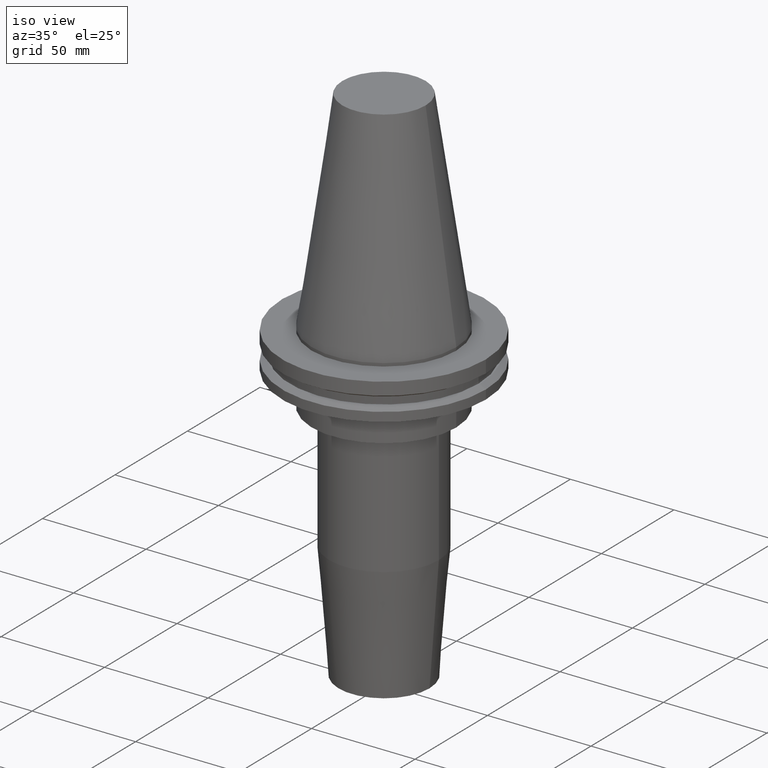
[diagram: clean part render]
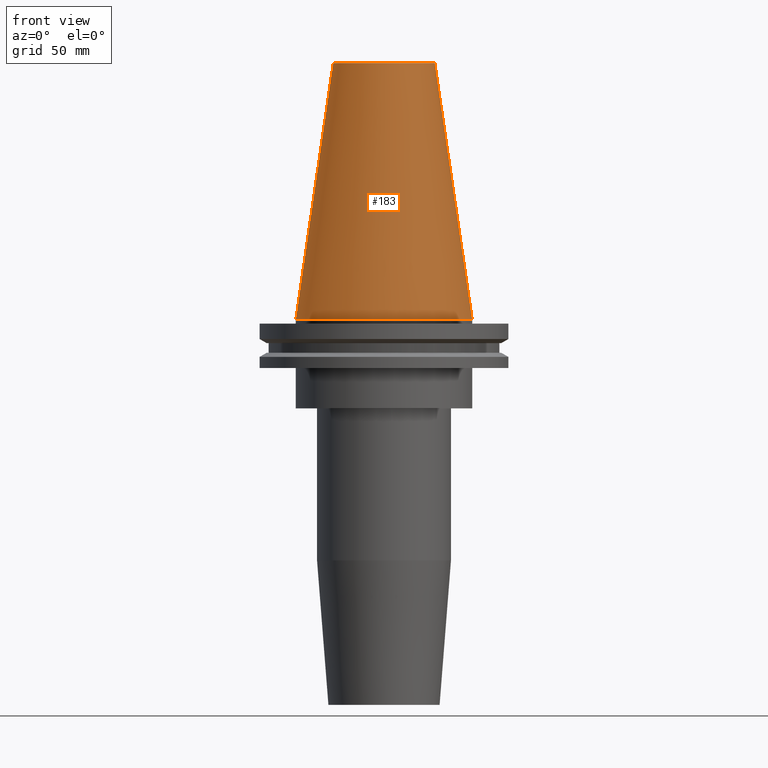
[diagram: tour spotlight — one face highlighted and labeled with its STEP entity id]
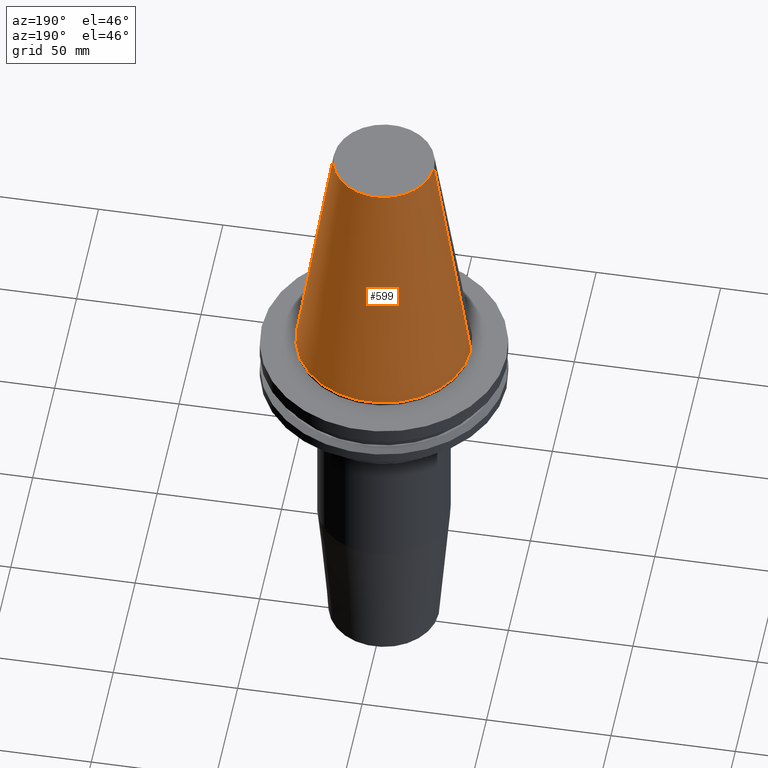
[diagram: tour spotlight — one face highlighted and labeled with its STEP entity id]
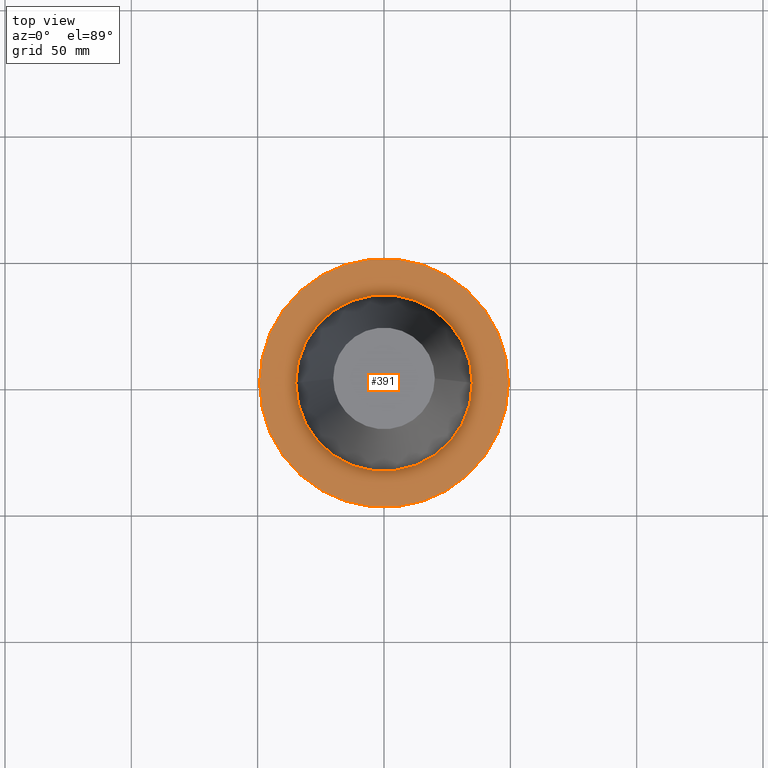
[diagram: tour spotlight — one face highlighted and labeled with its STEP entity id]
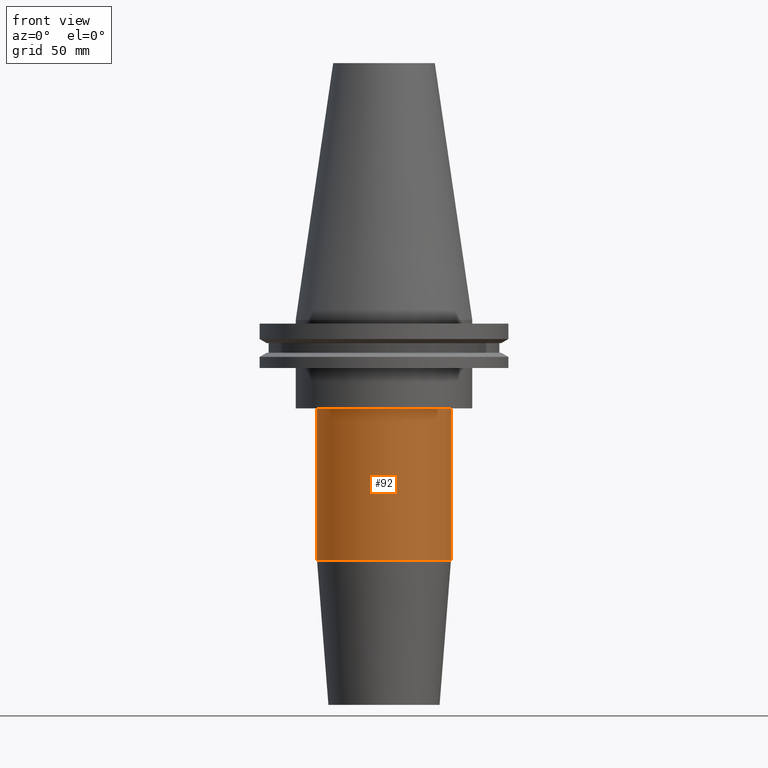
[diagram: tour spotlight — one face highlighted and labeled with its STEP entity id]
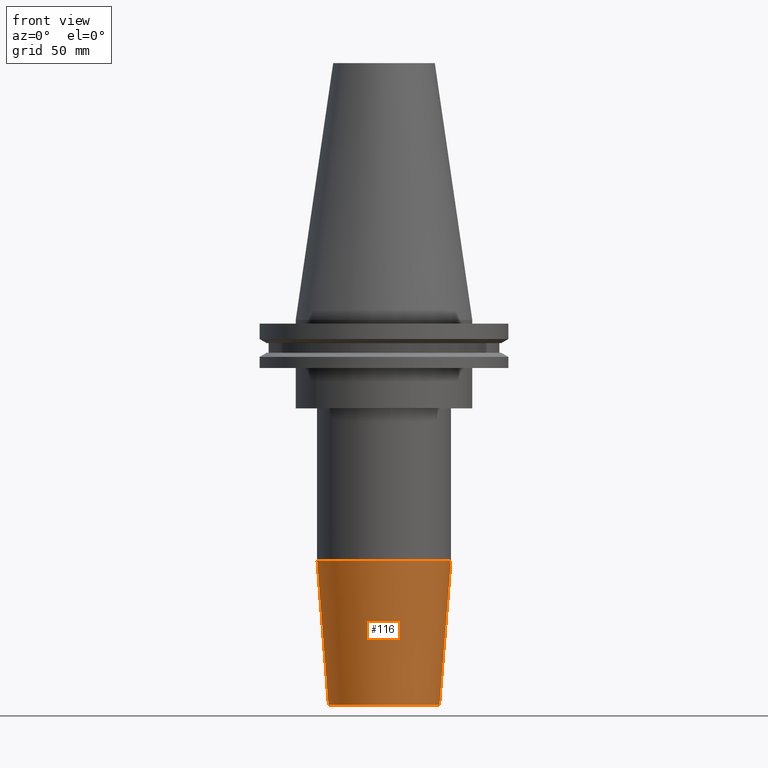
[diagram: tour spotlight — one face highlighted and labeled with its STEP entity id]
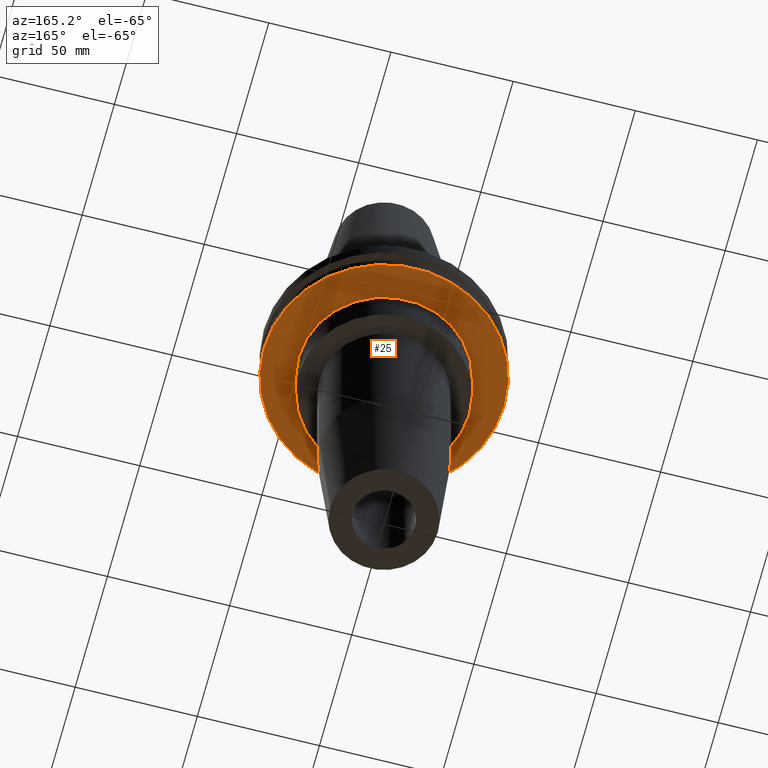
[diagram: tour spotlight — one face highlighted and labeled with its STEP entity id]
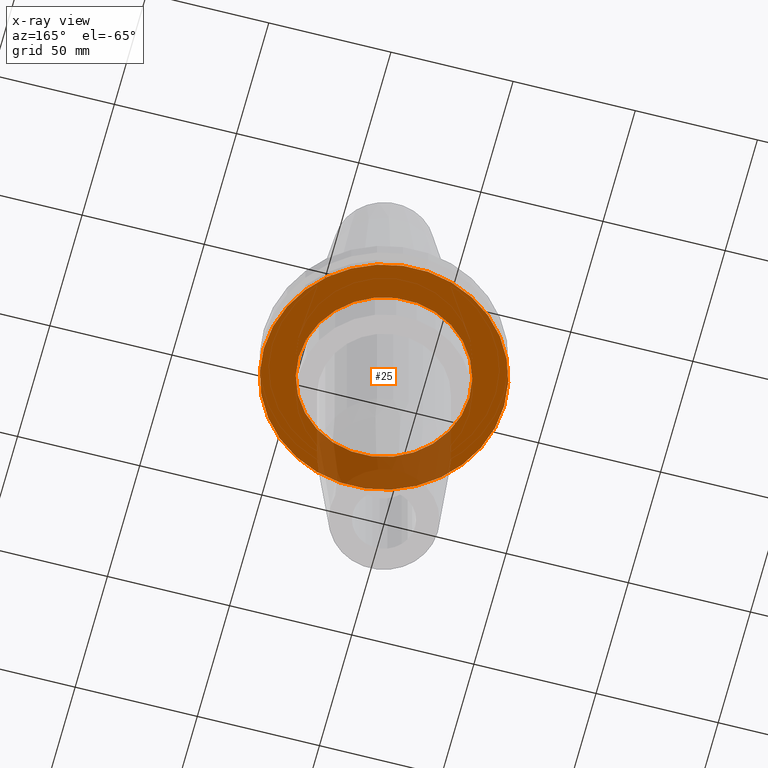
[diagram: x-ray of the same camera — body ghosted, this tour face saturated]
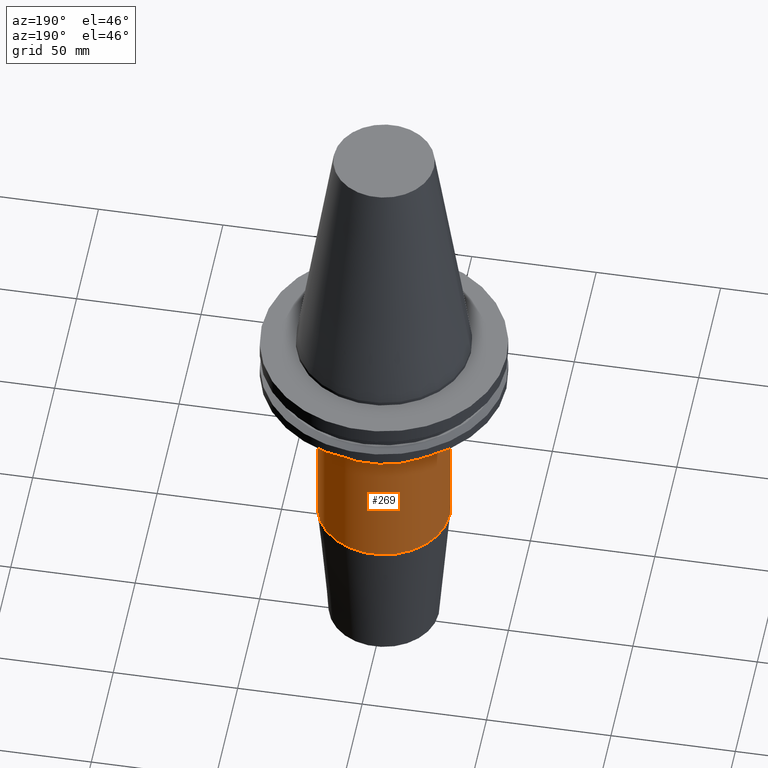
[diagram: tour spotlight — one face highlighted and labeled with its STEP entity id]
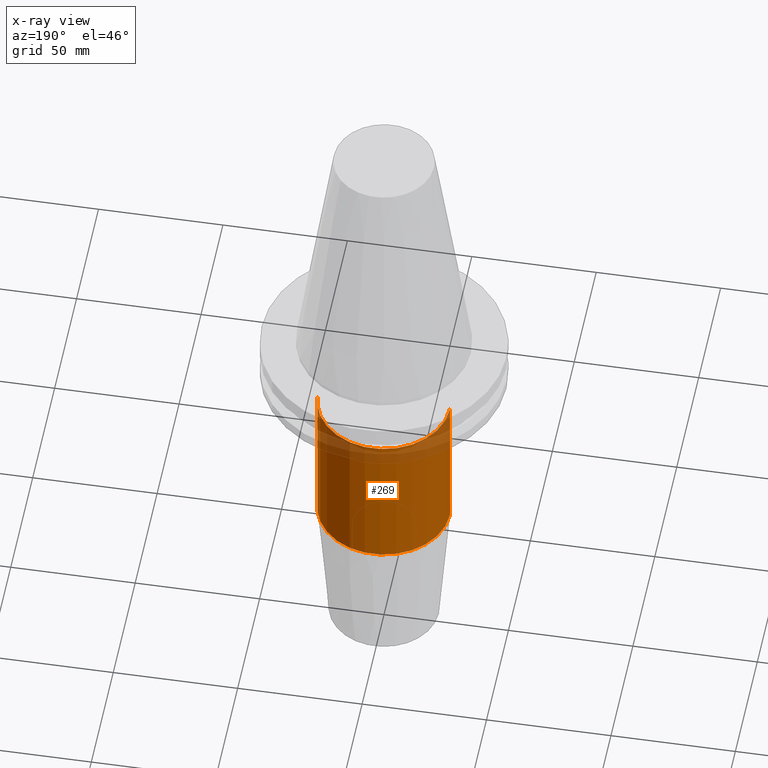
[diagram: x-ray of the same camera — body ghosted, this tour face saturated]
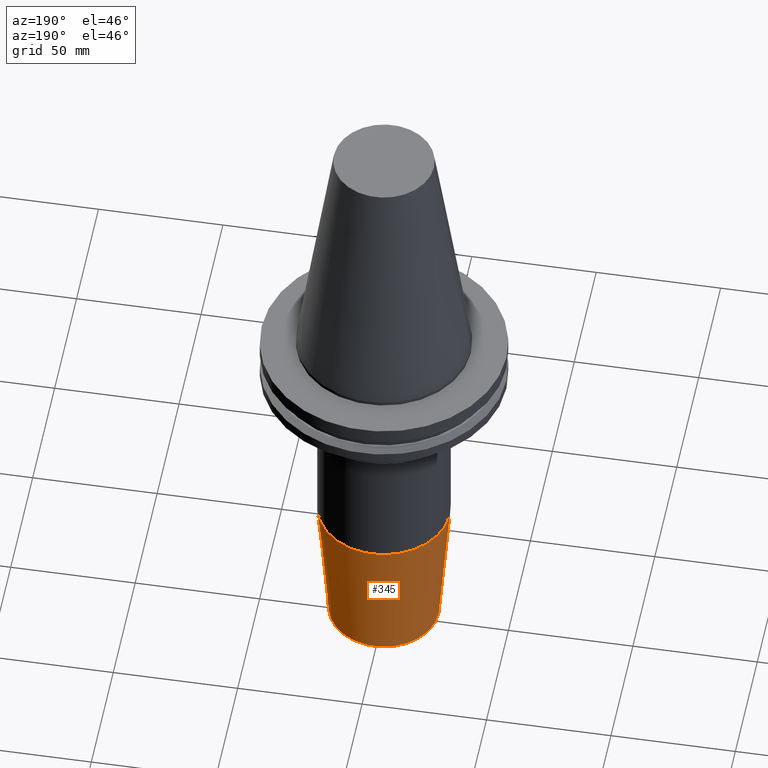
[diagram: tour spotlight — one face highlighted and labeled with its STEP entity id]
A machine part: a face-by-face anatomy tour. The part has 30 B-rep faces; the first image is the clean iso view, then the 8 largest visible faces are spotlighted one at a time (largest first), each with its STEP entity span.

Face 1 — front view, entity #183. In plain terms, the highlighted conical surface has half-angle 8.297 deg.
Definition (entity closure, byte-faithful):
#24 = CARTESIAN_POINT ( 'NONE',  ( 34.92499999999999005, 4.277078946022130098E-15, 0.000000000000000000 ) ) ;
#35 = AXIS2_PLACEMENT_3D ( 'NONE', #708, #329, #700 ) ;
#36 = CARTESIAN_POINT ( 'NONE',  ( 0.000000000000000000, 0.000000000000000000, 0.000000000000000000 ) ) ;
#50 = EDGE_CURVE ( 'NONE', #371, #171, #468, .T. ) ;
#100 = DIRECTION ( 'NONE',  ( 1.000000000000000000, 0.000000000000000000, 0.000000000000000000 ) ) ;
#104 = EDGE_CURVE ( 'NONE', #632, #470, #621, .T. ) ;
#158 = DIRECTION ( 'NONE',  ( 0.1443082272672999988, 1.767266086135277066E-17, -0.9895327864921755756 ) ) ;
#171 = VERTEX_POINT ( 'NONE', #421 ) ;
#183 = ADVANCED_FACE ( 'NONE', ( #613 ), #259, .T. ) ;
#205 = EDGE_CURVE ( 'NONE', #171, #470, #849, .T. ) ;
#246 = DIRECTION ( 'NONE',  ( -0.000000000000000000, -0.000000000000000000, 1.000000000000000000 ) ) ;
#259 = CONICAL_SURFACE ( 'NONE', #746, 34.92499999999999005, 0.1448138465474119452 ) ;
#276 = AXIS2_PLACEMENT_3D ( 'NONE', #36, #246, #100 ) ;
#293 = DIRECTION ( 'NONE',  ( -1.000000000000000000, 0.000000000000000000, 0.000000000000000000 ) ) ;
#329 = DIRECTION ( 'NONE',  ( -0.000000000000000000, -0.000000000000000000, 1.000000000000000000 ) ) ;
#336 = EDGE_CURVE ( 'NONE', #371, #632, #761, .T. ) ;
#371 = VERTEX_POINT ( 'NONE', #505 ) ;
#421 = CARTESIAN_POINT ( 'NONE',  ( -34.92499999999999005, 0.000000000000000000, 0.000000000000000000 ) ) ;
#468 = LINE ( 'NONE', #596, #822 ) ;
#470 = VERTEX_POINT ( 'NONE', #799 ) ;
#505 = CARTESIAN_POINT ( 'NONE',  ( -20.10819343178871321, 0.000000000000000000, 101.5999999999999801 ) ) ;
#507 = ORIENTED_EDGE ( 'NONE', *, *, #50, .T. ) ;
#515 = EDGE_LOOP ( 'NONE', ( #779, #814, #507, #718 ) ) ;
#516 = VECTOR ( 'NONE', #158, 999.9999999999998863 ) ;
#564 = CARTESIAN_POINT ( 'NONE',  ( 0.000000000000000000, 0.000000000000000000, 0.000000000000000000 ) ) ;
#596 = CARTESIAN_POINT ( 'NONE',  ( -34.92499999999999005, 0.000000000000000000, 0.000000000000000000 ) ) ;
#613 = FACE_OUTER_BOUND ( 'NONE', #515, .T. ) ;
#619 = CARTESIAN_POINT ( 'NONE',  ( 20.10819343178871321, 3.369811209154858606E-15, 101.5999999999999801 ) ) ;
#621 = LINE ( 'NONE', #24, #516 ) ;
#632 = VERTEX_POINT ( 'NONE', #619 ) ;
#700 = DIRECTION ( 'NONE',  ( 1.000000000000000000, 0.000000000000000000, 0.000000000000000000 ) ) ;
#708 = CARTESIAN_POINT ( 'NONE',  ( 0.000000000000000000, 0.000000000000000000, 101.5999999999999801 ) ) ;
#718 = ORIENTED_EDGE ( 'NONE', *, *, #205, .T. ) ;
#746 = AXIS2_PLACEMENT_3D ( 'NONE', #564, #751, #293 ) ;
#751 = DIRECTION ( 'NONE',  ( 0.000000000000000000, 0.000000000000000000, -1.000000000000000000 ) ) ;
#761 = CIRCLE ( 'NONE', #35, 20.10819343178871321 ) ;
#779 = ORIENTED_EDGE ( 'NONE', *, *, #104, .F. ) ;
#795 = DIRECTION ( 'NONE',  ( -0.1443082272672999988, 0.000000000000000000, -0.9895327864921755756 ) ) ;
#799 = CARTESIAN_POINT ( 'NONE',  ( 34.92499999999999005, 4.277078946022130098E-15, 0.000000000000000000 ) ) ;
#814 = ORIENTED_EDGE ( 'NONE', *, *, #336, .F. ) ;
#822 = VECTOR ( 'NONE', #795, 999.9999999999998863 ) ;
#849 = CIRCLE ( 'NONE', #276, 34.92499999999999005 ) ;

Face 2 — auxiliary view, entity #599. In plain terms, the highlighted conical surface has half-angle 8.297 deg.
Definition (entity closure, byte-faithful):
#8 = AXIS2_PLACEMENT_3D ( 'NONE', #44, #56, #716 ) ;
#24 = CARTESIAN_POINT ( 'NONE',  ( 34.92499999999999005, 4.277078946022130098E-15, 0.000000000000000000 ) ) ;
#32 = DIRECTION ( 'NONE',  ( -0.000000000000000000, -0.000000000000000000, 1.000000000000000000 ) ) ;
#44 = CARTESIAN_POINT ( 'NONE',  ( 0.000000000000000000, 0.000000000000000000, 0.000000000000000000 ) ) ;
#50 = EDGE_CURVE ( 'NONE', #371, #171, #468, .T. ) ;
#56 = DIRECTION ( 'NONE',  ( -0.000000000000000000, -0.000000000000000000, 1.000000000000000000 ) ) ;
#85 = CARTESIAN_POINT ( 'NONE',  ( 0.000000000000000000, 0.000000000000000000, 101.5999999999999801 ) ) ;
#104 = EDGE_CURVE ( 'NONE', #632, #470, #621, .T. ) ;
#120 = EDGE_CURVE ( 'NONE', #632, #371, #187, .T. ) ;
#158 = DIRECTION ( 'NONE',  ( 0.1443082272672999988, 1.767266086135277066E-17, -0.9895327864921755756 ) ) ;
#166 = FACE_OUTER_BOUND ( 'NONE', #455, .T. ) ;
#171 = VERTEX_POINT ( 'NONE', #421 ) ;
#187 = CIRCLE ( 'NONE', #453, 20.10819343178871321 ) ;
#297 = DIRECTION ( 'NONE',  ( 1.000000000000000000, 0.000000000000000000, 0.000000000000000000 ) ) ;
#323 = ORIENTED_EDGE ( 'NONE', *, *, #120, .F. ) ;
#330 = EDGE_CURVE ( 'NONE', #470, #171, #437, .T. ) ;
#335 = CONICAL_SURFACE ( 'NONE', #337, 34.92499999999999005, 0.1448138465474119452 ) ;
#337 = AXIS2_PLACEMENT_3D ( 'NONE', #547, #622, #813 ) ;
#371 = VERTEX_POINT ( 'NONE', #505 ) ;
#421 = CARTESIAN_POINT ( 'NONE',  ( -34.92499999999999005, 0.000000000000000000, 0.000000000000000000 ) ) ;
#437 = CIRCLE ( 'NONE', #8, 34.92499999999999005 ) ;
#453 = AXIS2_PLACEMENT_3D ( 'NONE', #85, #32, #297 ) ;
#455 = EDGE_LOOP ( 'NONE', ( #323, #843, #530, #521 ) ) ;
#468 = LINE ( 'NONE', #596, #822 ) ;
#470 = VERTEX_POINT ( 'NONE', #799 ) ;
#505 = CARTESIAN_POINT ( 'NONE',  ( -20.10819343178871321, 0.000000000000000000, 101.5999999999999801 ) ) ;
#516 = VECTOR ( 'NONE', #158, 999.9999999999998863 ) ;
#521 = ORIENTED_EDGE ( 'NONE', *, *, #50, .F. ) ;
#530 = ORIENTED_EDGE ( 'NONE', *, *, #330, .T. ) ;
#547 = CARTESIAN_POINT ( 'NONE',  ( 0.000000000000000000, 0.000000000000000000, 0.000000000000000000 ) ) ;
#596 = CARTESIAN_POINT ( 'NONE',  ( -34.92499999999999005, 0.000000000000000000, 0.000000000000000000 ) ) ;
#599 = ADVANCED_FACE ( 'NONE', ( #166 ), #335, .T. ) ;
#619 = CARTESIAN_POINT ( 'NONE',  ( 20.10819343178871321, 3.369811209154858606E-15, 101.5999999999999801 ) ) ;
#621 = LINE ( 'NONE', #24, #516 ) ;
#622 = DIRECTION ( 'NONE',  ( 0.000000000000000000, 0.000000000000000000, -1.000000000000000000 ) ) ;
#632 = VERTEX_POINT ( 'NONE', #619 ) ;
#716 = DIRECTION ( 'NONE',  ( 1.000000000000000000, 0.000000000000000000, 0.000000000000000000 ) ) ;
#795 = DIRECTION ( 'NONE',  ( -0.1443082272672999988, 0.000000000000000000, -0.9895327864921755756 ) ) ;
#799 = CARTESIAN_POINT ( 'NONE',  ( 34.92499999999999005, 4.277078946022130098E-15, 0.000000000000000000 ) ) ;
#813 = DIRECTION ( 'NONE',  ( -1.000000000000000000, 0.000000000000000000, 0.000000000000000000 ) ) ;
#822 = VECTOR ( 'NONE', #795, 999.9999999999998863 ) ;
#843 = ORIENTED_EDGE ( 'NONE', *, *, #104, .T. ) ;

Face 3 — top view, entity #391. In plain terms, the highlighted planar face has unit normal (0, 0, -1).
Definition (entity closure, byte-faithful):
#4 = ORIENTED_EDGE ( 'NONE', *, *, #688, .F. ) ;
#9 = CIRCLE ( 'NONE', #306, 49.21499999999999631 ) ;
#15 = AXIS2_PLACEMENT_3D ( 'NONE', #219, #735, #89 ) ;
#89 = DIRECTION ( 'NONE',  ( 1.000000000000000000, 0.000000000000000000, 0.000000000000000000 ) ) ;
#103 = ORIENTED_EDGE ( 'NONE', *, *, #195, .T. ) ;
#105 = AXIS2_PLACEMENT_3D ( 'NONE', #465, #199, #722 ) ;
#123 = EDGE_LOOP ( 'NONE', ( #568, #4 ) ) ;
#177 = DIRECTION ( 'NONE',  ( 1.000000000000000000, 0.000000000000000000, 0.000000000000000000 ) ) ;
#194 = VERTEX_POINT ( 'NONE', #431 ) ;
#195 = EDGE_CURVE ( 'NONE', #768, #194, #670, .T. ) ;
#199 = DIRECTION ( 'NONE',  ( 0.000000000000000000, 0.000000000000000000, -1.000000000000000000 ) ) ;
#219 = CARTESIAN_POINT ( 'NONE',  ( 0.000000000000000000, 0.000000000000000000, -1.499999999999987566 ) ) ;
#220 = EDGE_LOOP ( 'NONE', ( #340, #103 ) ) ;
#237 = EDGE_CURVE ( 'NONE', #194, #768, #9, .T. ) ;
#250 = CARTESIAN_POINT ( 'NONE',  ( 0.000000000000000000, 0.000000000000000000, -1.499999999999987566 ) ) ;
#254 = DIRECTION ( 'NONE',  ( -0.000000000000000000, -0.000000000000000000, 1.000000000000000000 ) ) ;
#306 = AXIS2_PLACEMENT_3D ( 'NONE', #250, #254, #177 ) ;
#310 = DIRECTION ( 'NONE',  ( -0.000000000000000000, -0.000000000000000000, 1.000000000000000000 ) ) ;
#340 = ORIENTED_EDGE ( 'NONE', *, *, #237, .T. ) ;
#346 = CARTESIAN_POINT ( 'NONE',  ( -34.92499999999999005, 4.277078946022130098E-15, -1.499999999999987566 ) ) ;
#359 = CARTESIAN_POINT ( 'NONE',  ( 0.000000000000000000, 0.000000000000000000, -1.499999999999987566 ) ) ;
#375 = CIRCLE ( 'NONE', #852, 34.92499999999999005 ) ;
#377 = VERTEX_POINT ( 'NONE', #854 ) ;
#380 = FACE_OUTER_BOUND ( 'NONE', #220, .T. ) ;
#391 = ADVANCED_FACE ( 'NONE', ( #522, #380 ), #668, .F. ) ;
#430 = VERTEX_POINT ( 'NONE', #346 ) ;
#431 = CARTESIAN_POINT ( 'NONE',  ( 49.21499999999999631, 0.000000000000000000, -1.499999999999987566 ) ) ;
#465 = CARTESIAN_POINT ( 'NONE',  ( 0.000000000000000000, 49.21499999999999631, -1.499999999999992895 ) ) ;
#522 = FACE_BOUND ( 'NONE', #123, .T. ) ;
#537 = DIRECTION ( 'NONE',  ( -0.000000000000000000, -0.000000000000000000, 1.000000000000000000 ) ) ;
#568 = ORIENTED_EDGE ( 'NONE', *, *, #588, .F. ) ;
#588 = EDGE_CURVE ( 'NONE', #377, #430, #375, .T. ) ;
#668 = PLANE ( 'NONE',  #105 ) ;
#670 = CIRCLE ( 'NONE', #778, 49.21499999999999631 ) ;
#688 = EDGE_CURVE ( 'NONE', #430, #377, #727, .T. ) ;
#692 = DIRECTION ( 'NONE',  ( 1.000000000000000000, 0.000000000000000000, 0.000000000000000000 ) ) ;
#722 = DIRECTION ( 'NONE',  ( -1.000000000000000000, 0.000000000000000000, -0.000000000000000000 ) ) ;
#727 = CIRCLE ( 'NONE', #15, 34.92499999999999005 ) ;
#735 = DIRECTION ( 'NONE',  ( -0.000000000000000000, -0.000000000000000000, 1.000000000000000000 ) ) ;
#768 = VERTEX_POINT ( 'NONE', #803 ) ;
#778 = AXIS2_PLACEMENT_3D ( 'NONE', #811, #310, #692 ) ;
#803 = CARTESIAN_POINT ( 'NONE',  ( -49.21499999999999631, 6.027099222003697826E-15, -1.499999999999987566 ) ) ;
#809 = DIRECTION ( 'NONE',  ( 1.000000000000000000, 0.000000000000000000, 0.000000000000000000 ) ) ;
#811 = CARTESIAN_POINT ( 'NONE',  ( 0.000000000000000000, 0.000000000000000000, -1.499999999999987566 ) ) ;
#852 = AXIS2_PLACEMENT_3D ( 'NONE', #359, #537, #809 ) ;
#854 = CARTESIAN_POINT ( 'NONE',  ( 34.92499999999999005, 0.000000000000000000, -1.499999999999987566 ) ) ;

Face 4 — front view, entity #92. In plain terms, the highlighted cylindrical surface (partial cylindrical patch) has radius 26.5 mm, axis along (-0, -0, 1).
Definition (entity closure, byte-faithful):
#55 = ORIENTED_EDGE ( 'NONE', *, *, #624, .F. ) ;
#92 = ADVANCED_FACE ( 'NONE', ( #478 ), #242, .T. ) ;
#115 = CARTESIAN_POINT ( 'NONE',  ( 0.000000000000000000, 0.000000000000000000, -95.22207868720845170 ) ) ;
#138 = CARTESIAN_POINT ( 'NONE',  ( 26.50000000000000000, 0.000000000000000000, -95.22207868720845170 ) ) ;
#173 = DIRECTION ( 'NONE',  ( -0.000000000000000000, -0.000000000000000000, 1.000000000000000000 ) ) ;
#193 = DIRECTION ( 'NONE',  ( 1.000000000000000000, 0.000000000000000000, 0.000000000000000000 ) ) ;
#242 = CYLINDRICAL_SURFACE ( 'NONE', #789, 26.50000000000000000 ) ;
#274 = EDGE_CURVE ( 'NONE', #853, #504, #571, .T. ) ;
#288 = EDGE_CURVE ( 'NONE', #504, #771, #314, .T. ) ;
#303 = LINE ( 'NONE', #556, #311 ) ;
#307 = CARTESIAN_POINT ( 'NONE',  ( 0.000000000000000000, 0.000000000000000000, 0.000000000000000000 ) ) ;
#311 = VECTOR ( 'NONE', #486, 1000.000000000000000 ) ;
#314 = LINE ( 'NONE', #772, #517 ) ;
#338 = ORIENTED_EDGE ( 'NONE', *, *, #723, .F. ) ;
#365 = CARTESIAN_POINT ( 'NONE',  ( 0.000000000000000000, 0.000000000000000000, -35.04999999999999716 ) ) ;
#393 = DIRECTION ( 'NONE',  ( -0.000000000000000000, -0.000000000000000000, 1.000000000000000000 ) ) ;
#403 = CARTESIAN_POINT ( 'NONE',  ( -26.50000000000000000, 3.245314017740485765E-15, -35.04999999999999716 ) ) ;
#407 = ORIENTED_EDGE ( 'NONE', *, *, #288, .T. ) ;
#446 = VERTEX_POINT ( 'NONE', #403 ) ;
#478 = FACE_OUTER_BOUND ( 'NONE', #552, .T. ) ;
#479 = DIRECTION ( 'NONE',  ( 1.000000000000000000, 0.000000000000000000, 0.000000000000000000 ) ) ;
#482 = CARTESIAN_POINT ( 'NONE',  ( 26.50000000000000000, 0.000000000000000000, -35.04999999999999716 ) ) ;
#486 = DIRECTION ( 'NONE',  ( -0.000000000000000000, -0.000000000000000000, 1.000000000000000000 ) ) ;
#494 = DIRECTION ( 'NONE',  ( -0.000000000000000000, -0.000000000000000000, 1.000000000000000000 ) ) ;
#504 = VERTEX_POINT ( 'NONE', #138 ) ;
#506 = CARTESIAN_POINT ( 'NONE',  ( -26.50000000000000000, 3.245314017740485765E-15, -95.22207868720845170 ) ) ;
#517 = VECTOR ( 'NONE', #393, 1000.000000000000000 ) ;
#552 = EDGE_LOOP ( 'NONE', ( #338, #611, #407, #55 ) ) ;
#556 = CARTESIAN_POINT ( 'NONE',  ( -26.50000000000000000, 3.245314017740485765E-15, 0.000000000000000000 ) ) ;
#571 = CIRCLE ( 'NONE', #710, 26.50000000000000000 ) ;
#611 = ORIENTED_EDGE ( 'NONE', *, *, #274, .T. ) ;
#624 = EDGE_CURVE ( 'NONE', #446, #771, #806, .T. ) ;
#653 = AXIS2_PLACEMENT_3D ( 'NONE', #365, #805, #479 ) ;
#710 = AXIS2_PLACEMENT_3D ( 'NONE', #115, #173, #193 ) ;
#723 = EDGE_CURVE ( 'NONE', #853, #446, #303, .T. ) ;
#757 = DIRECTION ( 'NONE',  ( 1.000000000000000000, 0.000000000000000000, 0.000000000000000000 ) ) ;
#771 = VERTEX_POINT ( 'NONE', #482 ) ;
#772 = CARTESIAN_POINT ( 'NONE',  ( 26.50000000000000000, 0.000000000000000000, 0.000000000000000000 ) ) ;
#789 = AXIS2_PLACEMENT_3D ( 'NONE', #307, #494, #757 ) ;
#805 = DIRECTION ( 'NONE',  ( -0.000000000000000000, -0.000000000000000000, 1.000000000000000000 ) ) ;
#806 = CIRCLE ( 'NONE', #653, 26.50000000000000000 ) ;
#853 = VERTEX_POINT ( 'NONE', #506 ) ;

Face 5 — front view, entity #116. In plain terms, the highlighted conical surface has half-angle 4.5 deg.
Definition (entity closure, byte-faithful):
#10 = LINE ( 'NONE', #65, #804 ) ;
#23 = ORIENTED_EDGE ( 'NONE', *, *, #640, .F. ) ;
#62 = VERTEX_POINT ( 'NONE', #472 ) ;
#65 = CARTESIAN_POINT ( 'NONE',  ( 22.00000000000000000, 0.000000000000000000, -152.4000000000000057 ) ) ;
#84 = CARTESIAN_POINT ( 'NONE',  ( -22.00000000000000000, 2.694222958124176809E-15, -152.4000000000000057 ) ) ;
#111 = CARTESIAN_POINT ( 'NONE',  ( 0.000000000000000000, 0.000000000000000000, -152.4000000000000057 ) ) ;
#115 = CARTESIAN_POINT ( 'NONE',  ( 0.000000000000000000, 0.000000000000000000, -95.22207868720845170 ) ) ;
#116 = ADVANCED_FACE ( 'NONE', ( #821 ), #140, .T. ) ;
#138 = CARTESIAN_POINT ( 'NONE',  ( 26.50000000000000000, 0.000000000000000000, -95.22207868720845170 ) ) ;
#140 = CONICAL_SURFACE ( 'NONE', #157, 22.00000000000000000, 0.07853981633973751431 ) ;
#141 = CIRCLE ( 'NONE', #627, 22.00000000000000000 ) ;
#152 = DIRECTION ( 'NONE',  ( -0.000000000000000000, -0.000000000000000000, 1.000000000000000000 ) ) ;
#157 = AXIS2_PLACEMENT_3D ( 'NONE', #428, #152, #677 ) ;
#173 = DIRECTION ( 'NONE',  ( -0.000000000000000000, -0.000000000000000000, 1.000000000000000000 ) ) ;
#193 = DIRECTION ( 'NONE',  ( 1.000000000000000000, 0.000000000000000000, 0.000000000000000000 ) ) ;
#251 = ORIENTED_EDGE ( 'NONE', *, *, #274, .F. ) ;
#266 = DIRECTION ( 'NONE',  ( 1.000000000000000000, 0.000000000000000000, 0.000000000000000000 ) ) ;
#274 = EDGE_CURVE ( 'NONE', #853, #504, #571, .T. ) ;
#339 = DIRECTION ( 'NONE',  ( 0.07845909572783764385, 0.000000000000000000, 0.9969173337331286300 ) ) ;
#381 = EDGE_CURVE ( 'NONE', #410, #62, #141, .T. ) ;
#401 = VECTOR ( 'NONE', #419, 999.9999999999998863 ) ;
#406 = CARTESIAN_POINT ( 'NONE',  ( -22.00000000000000000, 2.969768487932331287E-15, -152.4000000000000057 ) ) ;
#410 = VERTEX_POINT ( 'NONE', #406 ) ;
#419 = DIRECTION ( 'NONE',  ( -0.07845909572783764385, 9.608468044709212160E-18, 0.9969173337331286300 ) ) ;
#428 = CARTESIAN_POINT ( 'NONE',  ( 0.000000000000000000, 0.000000000000000000, -152.4000000000000057 ) ) ;
#472 = CARTESIAN_POINT ( 'NONE',  ( 22.00000000000000000, 0.000000000000000000, -152.4000000000000057 ) ) ;
#474 = EDGE_CURVE ( 'NONE', #62, #504, #10, .T. ) ;
#504 = VERTEX_POINT ( 'NONE', #138 ) ;
#506 = CARTESIAN_POINT ( 'NONE',  ( -26.50000000000000000, 3.245314017740485765E-15, -95.22207868720845170 ) ) ;
#513 = DIRECTION ( 'NONE',  ( -0.000000000000000000, -0.000000000000000000, 1.000000000000000000 ) ) ;
#571 = CIRCLE ( 'NONE', #710, 26.50000000000000000 ) ;
#582 = EDGE_LOOP ( 'NONE', ( #23, #636, #756, #251 ) ) ;
#627 = AXIS2_PLACEMENT_3D ( 'NONE', #111, #513, #266 ) ;
#636 = ORIENTED_EDGE ( 'NONE', *, *, #381, .T. ) ;
#640 = EDGE_CURVE ( 'NONE', #410, #853, #675, .T. ) ;
#675 = LINE ( 'NONE', #84, #401 ) ;
#677 = DIRECTION ( 'NONE',  ( 1.000000000000000000, 0.000000000000000000, 0.000000000000000000 ) ) ;
#710 = AXIS2_PLACEMENT_3D ( 'NONE', #115, #173, #193 ) ;
#756 = ORIENTED_EDGE ( 'NONE', *, *, #474, .T. ) ;
#804 = VECTOR ( 'NONE', #339, 999.9999999999998863 ) ;
#821 = FACE_OUTER_BOUND ( 'NONE', #582, .T. ) ;
#853 = VERTEX_POINT ( 'NONE', #506 ) ;

Face 6 — auxiliary view, entity #25. An x-ray twin of the same camera follows (body ghosted, this face saturated) — the face is partly hidden behind the body. In plain terms, the highlighted planar face has unit normal (0, -0, 1).
Definition (entity closure, byte-faithful):
#5 = DIRECTION ( 'NONE',  ( 1.000000000000000000, 0.000000000000000000, 0.000000000000000000 ) ) ;
#17 = EDGE_LOOP ( 'NONE', ( #792, #234 ) ) ;
#20 = CIRCLE ( 'NONE', #680, 49.21499999999998920 ) ;
#25 = ADVANCED_FACE ( 'NONE', ( #602, #134 ), #282, .F. ) ;
#41 = DIRECTION ( 'NONE',  ( 1.000000000000000000, 0.000000000000000000, 0.000000000000000000 ) ) ;
#60 = CARTESIAN_POINT ( 'NONE',  ( 0.000000000000000000, 0.000000000000000000, -19.04999999999999716 ) ) ;
#73 = DIRECTION ( 'NONE',  ( 1.000000000000000000, 0.000000000000000000, 0.000000000000000000 ) ) ;
#74 = AXIS2_PLACEMENT_3D ( 'NONE', #538, #665, #73 ) ;
#113 = AXIS2_PLACEMENT_3D ( 'NONE', #117, #641, #41 ) ;
#117 = CARTESIAN_POINT ( 'NONE',  ( 0.000000000000000000, 0.000000000000000000, -19.04999999999999716 ) ) ;
#134 = FACE_BOUND ( 'NONE', #265, .T. ) ;
#170 = CIRCLE ( 'NONE', #819, 34.92499999999999716 ) ;
#188 = DIRECTION ( 'NONE',  ( -0.000000000000000000, -0.000000000000000000, 1.000000000000000000 ) ) ;
#204 = CARTESIAN_POINT ( 'NONE',  ( 0.000000000000000000, 0.000000000000000000, -19.04999999999999716 ) ) ;
#234 = ORIENTED_EDGE ( 'NONE', *, *, #416, .F. ) ;
#253 = EDGE_CURVE ( 'NONE', #420, #838, #170, .T. ) ;
#265 = EDGE_LOOP ( 'NONE', ( #818, #570 ) ) ;
#282 = PLANE ( 'NONE',  #74 ) ;
#296 = CIRCLE ( 'NONE', #113, 34.92499999999999716 ) ;
#299 = VERTEX_POINT ( 'NONE', #444 ) ;
#300 = EDGE_CURVE ( 'NONE', #576, #299, #20, .T. ) ;
#334 = CARTESIAN_POINT ( 'NONE',  ( 0.000000000000000000, 0.000000000000000000, -19.04999999999999716 ) ) ;
#388 = CIRCLE ( 'NONE', #788, 49.21499999999998920 ) ;
#416 = EDGE_CURVE ( 'NONE', #299, #576, #388, .T. ) ;
#420 = VERTEX_POINT ( 'NONE', #603 ) ;
#429 = CARTESIAN_POINT ( 'NONE',  ( 49.21499999999998920, 0.000000000000000000, -19.04999999999999716 ) ) ;
#444 = CARTESIAN_POINT ( 'NONE',  ( -49.21499999999998920, 6.027099222003697037E-15, -19.04999999999999716 ) ) ;
#538 = CARTESIAN_POINT ( 'NONE',  ( 0.000000000000000000, 49.21499999999998920, -19.04999999999999716 ) ) ;
#570 = ORIENTED_EDGE ( 'NONE', *, *, #253, .T. ) ;
#576 = VERTEX_POINT ( 'NONE', #429 ) ;
#602 = FACE_OUTER_BOUND ( 'NONE', #17, .T. ) ;
#603 = CARTESIAN_POINT ( 'NONE',  ( -34.92499999999999716, 4.277078946022130887E-15, -19.04999999999999716 ) ) ;
#641 = DIRECTION ( 'NONE',  ( -0.000000000000000000, -0.000000000000000000, 1.000000000000000000 ) ) ;
#643 = DIRECTION ( 'NONE',  ( -0.000000000000000000, -0.000000000000000000, 1.000000000000000000 ) ) ;
#664 = DIRECTION ( 'NONE',  ( -0.000000000000000000, -0.000000000000000000, 1.000000000000000000 ) ) ;
#665 = DIRECTION ( 'NONE',  ( 0.000000000000000000, -0.000000000000000000, 1.000000000000000000 ) ) ;
#680 = AXIS2_PLACEMENT_3D ( 'NONE', #334, #643, #844 ) ;
#698 = CARTESIAN_POINT ( 'NONE',  ( 34.92499999999999716, 0.000000000000000000, -19.04999999999999716 ) ) ;
#780 = DIRECTION ( 'NONE',  ( 1.000000000000000000, 0.000000000000000000, 0.000000000000000000 ) ) ;
#788 = AXIS2_PLACEMENT_3D ( 'NONE', #204, #664, #5 ) ;
#792 = ORIENTED_EDGE ( 'NONE', *, *, #300, .F. ) ;
#818 = ORIENTED_EDGE ( 'NONE', *, *, #845, .T. ) ;
#819 = AXIS2_PLACEMENT_3D ( 'NONE', #60, #188, #780 ) ;
#838 = VERTEX_POINT ( 'NONE', #698 ) ;
#844 = DIRECTION ( 'NONE',  ( 1.000000000000000000, 0.000000000000000000, 0.000000000000000000 ) ) ;
#845 = EDGE_CURVE ( 'NONE', #838, #420, #296, .T. ) ;

Face 7 — auxiliary view, entity #269. An x-ray twin of the same camera follows (body ghosted, this face saturated) — the face is partly hidden behind the body. In plain terms, the highlighted cylindrical surface (partial cylindrical patch) has radius 26.5 mm, axis along (-0, -0, 1).
Definition (entity closure, byte-faithful):
#27 = ORIENTED_EDGE ( 'NONE', *, *, #110, .T. ) ;
#110 = EDGE_CURVE ( 'NONE', #504, #853, #709, .T. ) ;
#127 = CYLINDRICAL_SURFACE ( 'NONE', #667, 26.50000000000000000 ) ;
#138 = CARTESIAN_POINT ( 'NONE',  ( 26.50000000000000000, 0.000000000000000000, -95.22207868720845170 ) ) ;
#167 = DIRECTION ( 'NONE',  ( 1.000000000000000000, 0.000000000000000000, 0.000000000000000000 ) ) ;
#182 = CARTESIAN_POINT ( 'NONE',  ( 0.000000000000000000, 0.000000000000000000, 0.000000000000000000 ) ) ;
#212 = EDGE_CURVE ( 'NONE', #771, #446, #390, .T. ) ;
#225 = CARTESIAN_POINT ( 'NONE',  ( 0.000000000000000000, 0.000000000000000000, -35.04999999999999716 ) ) ;
#269 = ADVANCED_FACE ( 'NONE', ( #767 ), #127, .T. ) ;
#288 = EDGE_CURVE ( 'NONE', #504, #771, #314, .T. ) ;
#303 = LINE ( 'NONE', #556, #311 ) ;
#311 = VECTOR ( 'NONE', #486, 1000.000000000000000 ) ;
#314 = LINE ( 'NONE', #772, #517 ) ;
#347 = AXIS2_PLACEMENT_3D ( 'NONE', #378, #360, #167 ) ;
#360 = DIRECTION ( 'NONE',  ( -0.000000000000000000, -0.000000000000000000, 1.000000000000000000 ) ) ;
#378 = CARTESIAN_POINT ( 'NONE',  ( 0.000000000000000000, 0.000000000000000000, -95.22207868720845170 ) ) ;
#390 = CIRCLE ( 'NONE', #774, 26.50000000000000000 ) ;
#393 = DIRECTION ( 'NONE',  ( -0.000000000000000000, -0.000000000000000000, 1.000000000000000000 ) ) ;
#397 = DIRECTION ( 'NONE',  ( 1.000000000000000000, 0.000000000000000000, 0.000000000000000000 ) ) ;
#403 = CARTESIAN_POINT ( 'NONE',  ( -26.50000000000000000, 3.245314017740485765E-15, -35.04999999999999716 ) ) ;
#446 = VERTEX_POINT ( 'NONE', #403 ) ;
#482 = CARTESIAN_POINT ( 'NONE',  ( 26.50000000000000000, 0.000000000000000000, -35.04999999999999716 ) ) ;
#486 = DIRECTION ( 'NONE',  ( -0.000000000000000000, -0.000000000000000000, 1.000000000000000000 ) ) ;
#500 = DIRECTION ( 'NONE',  ( -0.000000000000000000, -0.000000000000000000, 1.000000000000000000 ) ) ;
#504 = VERTEX_POINT ( 'NONE', #138 ) ;
#506 = CARTESIAN_POINT ( 'NONE',  ( -26.50000000000000000, 3.245314017740485765E-15, -95.22207868720845170 ) ) ;
#517 = VECTOR ( 'NONE', #393, 1000.000000000000000 ) ;
#556 = CARTESIAN_POINT ( 'NONE',  ( -26.50000000000000000, 3.245314017740485765E-15, 0.000000000000000000 ) ) ;
#585 = EDGE_LOOP ( 'NONE', ( #27, #726, #739, #833 ) ) ;
#625 = DIRECTION ( 'NONE',  ( 1.000000000000000000, 0.000000000000000000, 0.000000000000000000 ) ) ;
#637 = DIRECTION ( 'NONE',  ( -0.000000000000000000, -0.000000000000000000, 1.000000000000000000 ) ) ;
#667 = AXIS2_PLACEMENT_3D ( 'NONE', #182, #637, #397 ) ;
#709 = CIRCLE ( 'NONE', #347, 26.50000000000000000 ) ;
#723 = EDGE_CURVE ( 'NONE', #853, #446, #303, .T. ) ;
#726 = ORIENTED_EDGE ( 'NONE', *, *, #723, .T. ) ;
#739 = ORIENTED_EDGE ( 'NONE', *, *, #212, .F. ) ;
#767 = FACE_OUTER_BOUND ( 'NONE', #585, .T. ) ;
#771 = VERTEX_POINT ( 'NONE', #482 ) ;
#772 = CARTESIAN_POINT ( 'NONE',  ( 26.50000000000000000, 0.000000000000000000, 0.000000000000000000 ) ) ;
#774 = AXIS2_PLACEMENT_3D ( 'NONE', #225, #500, #625 ) ;
#833 = ORIENTED_EDGE ( 'NONE', *, *, #288, .F. ) ;
#853 = VERTEX_POINT ( 'NONE', #506 ) ;

Face 8 — auxiliary view, entity #345. In plain terms, the highlighted conical surface has half-angle 4.5 deg.
Definition (entity closure, byte-faithful):
#10 = LINE ( 'NONE', #65, #804 ) ;
#52 = CARTESIAN_POINT ( 'NONE',  ( 0.000000000000000000, 0.000000000000000000, -152.4000000000000057 ) ) ;
#62 = VERTEX_POINT ( 'NONE', #472 ) ;
#65 = CARTESIAN_POINT ( 'NONE',  ( 22.00000000000000000, 0.000000000000000000, -152.4000000000000057 ) ) ;
#69 = ORIENTED_EDGE ( 'NONE', *, *, #640, .T. ) ;
#84 = CARTESIAN_POINT ( 'NONE',  ( -22.00000000000000000, 2.694222958124176809E-15, -152.4000000000000057 ) ) ;
#110 = EDGE_CURVE ( 'NONE', #504, #853, #709, .T. ) ;
#119 = FACE_OUTER_BOUND ( 'NONE', #743, .T. ) ;
#138 = CARTESIAN_POINT ( 'NONE',  ( 26.50000000000000000, 0.000000000000000000, -95.22207868720845170 ) ) ;
#167 = DIRECTION ( 'NONE',  ( 1.000000000000000000, 0.000000000000000000, 0.000000000000000000 ) ) ;
#232 = CONICAL_SURFACE ( 'NONE', #348, 22.00000000000000000, 0.07853981633973751431 ) ;
#256 = DIRECTION ( 'NONE',  ( 1.000000000000000000, 0.000000000000000000, 0.000000000000000000 ) ) ;
#304 = AXIS2_PLACEMENT_3D ( 'NONE', #834, #586, #256 ) ;
#324 = DIRECTION ( 'NONE',  ( 1.000000000000000000, 0.000000000000000000, 0.000000000000000000 ) ) ;
#339 = DIRECTION ( 'NONE',  ( 0.07845909572783764385, 0.000000000000000000, 0.9969173337331286300 ) ) ;
#345 = ADVANCED_FACE ( 'NONE', ( #119 ), #232, .T. ) ;
#347 = AXIS2_PLACEMENT_3D ( 'NONE', #378, #360, #167 ) ;
#348 = AXIS2_PLACEMENT_3D ( 'NONE', #52, #583, #324 ) ;
#360 = DIRECTION ( 'NONE',  ( -0.000000000000000000, -0.000000000000000000, 1.000000000000000000 ) ) ;
#364 = EDGE_CURVE ( 'NONE', #62, #410, #554, .T. ) ;
#378 = CARTESIAN_POINT ( 'NONE',  ( 0.000000000000000000, 0.000000000000000000, -95.22207868720845170 ) ) ;
#401 = VECTOR ( 'NONE', #419, 999.9999999999998863 ) ;
#406 = CARTESIAN_POINT ( 'NONE',  ( -22.00000000000000000, 2.969768487932331287E-15, -152.4000000000000057 ) ) ;
#410 = VERTEX_POINT ( 'NONE', #406 ) ;
#419 = DIRECTION ( 'NONE',  ( -0.07845909572783764385, 9.608468044709212160E-18, 0.9969173337331286300 ) ) ;
#472 = CARTESIAN_POINT ( 'NONE',  ( 22.00000000000000000, 0.000000000000000000, -152.4000000000000057 ) ) ;
#474 = EDGE_CURVE ( 'NONE', #62, #504, #10, .T. ) ;
#504 = VERTEX_POINT ( 'NONE', #138 ) ;
#506 = CARTESIAN_POINT ( 'NONE',  ( -26.50000000000000000, 3.245314017740485765E-15, -95.22207868720845170 ) ) ;
#554 = CIRCLE ( 'NONE', #304, 22.00000000000000000 ) ;
#583 = DIRECTION ( 'NONE',  ( -0.000000000000000000, -0.000000000000000000, 1.000000000000000000 ) ) ;
#586 = DIRECTION ( 'NONE',  ( -0.000000000000000000, -0.000000000000000000, 1.000000000000000000 ) ) ;
#640 = EDGE_CURVE ( 'NONE', #410, #853, #675, .T. ) ;
#652 = ORIENTED_EDGE ( 'NONE', *, *, #364, .T. ) ;
#675 = LINE ( 'NONE', #84, #401 ) ;
#709 = CIRCLE ( 'NONE', #347, 26.50000000000000000 ) ;
#712 = ORIENTED_EDGE ( 'NONE', *, *, #474, .F. ) ;
#743 = EDGE_LOOP ( 'NONE', ( #652, #69, #810, #712 ) ) ;
#804 = VECTOR ( 'NONE', #339, 999.9999999999998863 ) ;
#810 = ORIENTED_EDGE ( 'NONE', *, *, #110, .F. ) ;
#834 = CARTESIAN_POINT ( 'NONE',  ( 0.000000000000000000, 0.000000000000000000, -152.4000000000000057 ) ) ;
#853 = VERTEX_POINT ( 'NONE', #506 ) ;